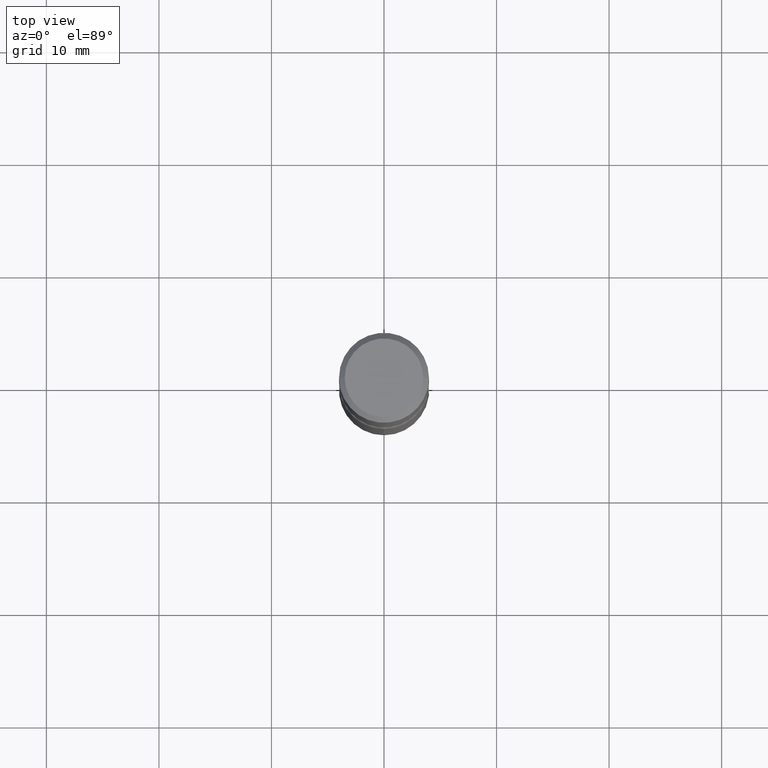
[diagram: clean part render]
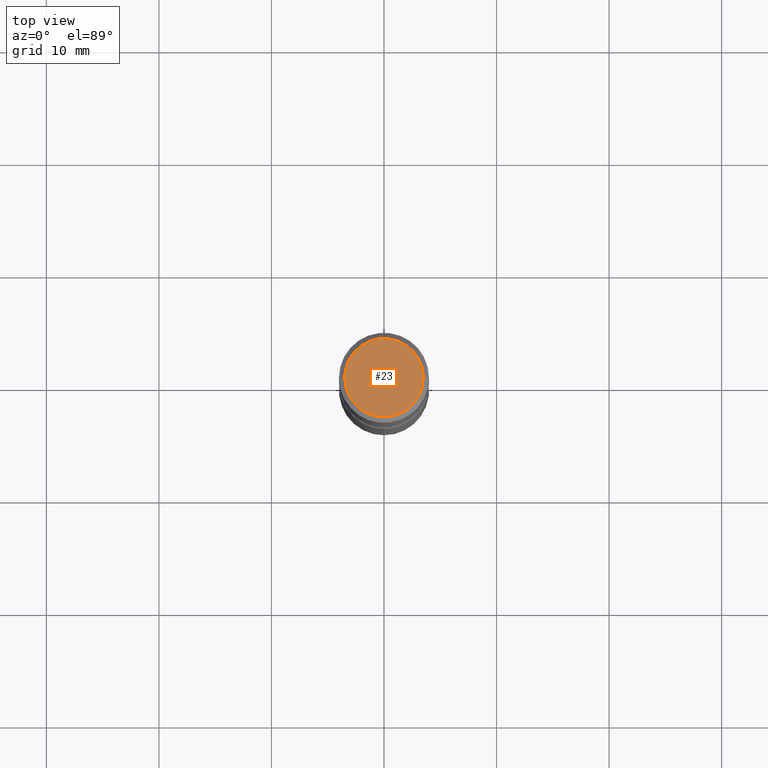
[diagram: same view with one face highlighted and labeled with its STEP entity id]
A machine part, top view. The second image highlights one B-rep face of the part: STEP entity #23.
In plain terms, the highlighted planar face has unit normal (0, -0, -1).
Its self-contained STEP definition (entity closure, byte-faithful):
#14 = PLANE ( 'NONE',  #417 ) ;
#23 = ADVANCED_FACE ( 'NONE', ( #352 ), #14, .F. ) ;
#43 = AXIS2_PLACEMENT_3D ( 'NONE', #173, #412, #198 ) ;
#44 = DIRECTION ( 'NONE',  ( 2.438088387897960049E-29, -3.491481338843145188E-15, -1.000000000000000000 ) ) ;
#113 = CARTESIAN_POINT ( 'NONE',  ( 9.601573681818602922E-16, 0.1374999999999998446, -4.779444278458817077E-16 ) ) ;
#133 = CIRCLE ( 'NONE', #320, 0.1374999999999998446 ) ;
#136 = DIRECTION ( 'NONE',  ( -2.445468806185136597E-29, 3.491481338843145583E-15, 1.000000000000000000 ) ) ;
#173 = CARTESIAN_POINT ( 'NONE',  ( -1.043851414335219820E-46, 1.490343170380447200E-32, 4.268512490100411279E-18 ) ) ;
#177 = EDGE_CURVE ( 'NONE', #361, #416, #380, .T. ) ;
#180 = ORIENTED_EDGE ( 'NONE', *, *, #464, .T. ) ;
#198 = DIRECTION ( 'NONE',  ( 1.000000000000000000, -6.982962677686265922E-15, 4.876173381029105647E-29 ) ) ;
#226 = DIRECTION ( 'NONE',  ( -1.000000000000000000, 6.982962677686265922E-15, -4.876176775795935793E-29 ) ) ;
#265 = EDGE_LOOP ( 'NONE', ( #309, #180 ) ) ;
#309 = ORIENTED_EDGE ( 'NONE', *, *, #177, .T. ) ;
#313 = CARTESIAN_POINT ( 'NONE',  ( -0.1374999999999998446, 9.950721815702917441E-16, 4.268512490093574228E-18 ) ) ;
#320 = AXIS2_PLACEMENT_3D ( 'NONE', #452, #136, #326 ) ;
#326 = DIRECTION ( 'NONE',  ( 1.000000000000000000, -6.982962677686265922E-15, 4.876173381029105647E-29 ) ) ;
#352 = FACE_OUTER_BOUND ( 'NONE', #265, .T. ) ;
#361 = VERTEX_POINT ( 'NONE', #313 ) ;
#380 = CIRCLE ( 'NONE', #43, 0.1374999999999998446 ) ;
#412 = DIRECTION ( 'NONE',  ( -2.445468806185136597E-29, 3.491481338843145583E-15, 1.000000000000000000 ) ) ;
#416 = VERTEX_POINT ( 'NONE', #434 ) ;
#417 = AXIS2_PLACEMENT_3D ( 'NONE', #113, #44, #226 ) ;
#434 = CARTESIAN_POINT ( 'NONE',  ( 0.1374999999999998446, -1.046838268059731505E-15, 4.268512490107428597E-18 ) ) ;
#452 = CARTESIAN_POINT ( 'NONE',  ( -1.043851414335219820E-46, 1.490343170380447200E-32, 4.268512490100411279E-18 ) ) ;
#464 = EDGE_CURVE ( 'NONE', #416, #361, #133, .T. ) ;